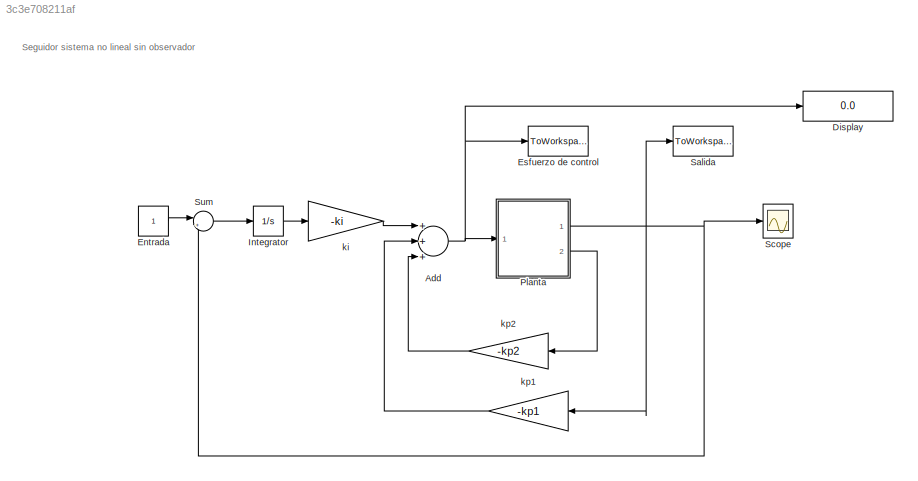
MODEL slx_3c3e708211af
KIND model
CONFIG AbsTol = auto
CONFIG FixedStep = auto
CONFIG MaxStep = auto
CONFIG MinStep = auto
CONFIG RelTol = 1e-3
CONFIG SampleTimeConstraint = Unconstrained
CONFIG Solver = VariableStepAuto
CONFIG SolverMode = Auto
CONFIG SolverName = VariableStepAuto
CONFIG StartTime = 0.0
CONFIG StopTime = 30
BLOCK [Sum] Add
  InputSameDT = off
  Inputs = +++
  OutDataTypeStr = Inherit: Inherit via internal rule
  Ports = [3, 1]
  SaturateOnIntegerOverflow = off
BLOCK [Display] Display
  Decimation = 1
  Ports = [1]
BLOCK [Constant] Entrada
BLOCK [ToWorkspace] Esfuerzo de control
  FixptAsFi = on
  MaxDataPoints = inf
  Ports = [1]
  SampleTime = -1
  Save2DSignal = 3-D array (concatenate along third dimension)
  SaveFormat = Timeseries
  VariableName = U
BLOCK [Integrator] Integrator
  Ports = [1, 1]
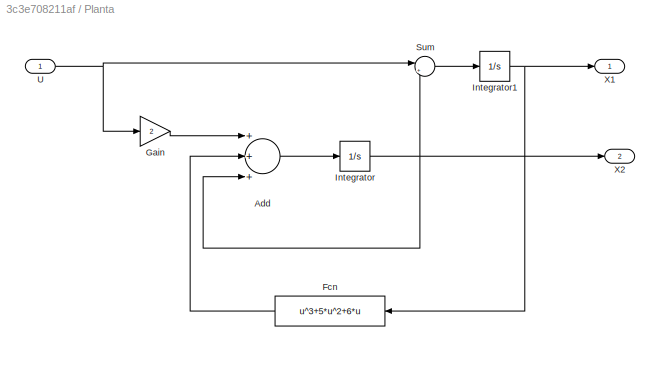
BLOCK [SubSystem] Planta
  Ports = [1, 2]
  RequestExecContextInheritance = off
  Variant = off
BLOCK [Sum] Planta/Add
  InputSameDT = off
  Inputs = +++
  OutDataTypeStr = Inherit: Inherit via internal rule
  Ports = [3, 1]
  SaturateOnIntegerOverflow = off
BLOCK [Fcn] Planta/Fcn
  Expr = u^3+5*u^2+6*u
BLOCK [Gain] Planta/Gain
  Gain = 2
  OutDataTypeStr = Inherit: Inherit via internal rule
  ParamDataTypeStr = Inherit: Inherit via internal rule
  SaturateOnIntegerOverflow = off
BLOCK [Integrator] Planta/Integrator
  Ports = [1, 1]
BLOCK [Integrator] Planta/Integrator1
  Ports = [1, 1]
BLOCK [Sum] Planta/Sum
  IconShape = round
  InputSameDT = off
  Inputs = |++
  OutDataTypeStr = Inherit: Inherit via internal rule
  Ports = [2, 1]
  SaturateOnIntegerOverflow = off
BLOCK [Inport] Planta/U
  IconDisplay = Port number
BLOCK [Outport] Planta/X1
  IconDisplay = Port number
BLOCK [Outport] Planta/X2
  IconDisplay = Port number
  Port = 2
BLOCK [ToWorkspace] Salida
  FixptAsFi = on
  MaxDataPoints = inf
  Ports = [1]
  SampleTime = -1
  Save2DSignal = 3-D array (concatenate along third dimension)
  SaveFormat = Timeseries
  VariableName = Y
BLOCK [Scope] Scope
  Ports = [1]
  ScopeSpecificationString = Simulink.scopes.TimeScopeBlockCfg('CurrentConfiguration', extmgr.ConfigurationSet(extmgr.Configuration('Core','General UI',true),extmgr.Configuration('Core','Source UI',true),extmgr.Configuration('Sources','WiredSimulink',true),extmgr.Configuration('Visuals','Time Domain',true,'SerializedDisplays',{struct('MinYLimReal','-0.13111','MaxYLimReal','1.18003','YLabelReal','','MinYLimMag','0.00000','MaxY...<+1380ch>
BLOCK [Sum] Sum
  IconShape = round
  InputSameDT = off
  Inputs = |+-
  OutDataTypeStr = Inherit: Inherit via internal rule
  Ports = [2, 1]
  SaturateOnIntegerOverflow = off
BLOCK [Gain] ki
  Gain = -ki
  OutDataTypeStr = Inherit: Inherit via internal rule
  ParamDataTypeStr = Inherit: Inherit via internal rule
  SaturateOnIntegerOverflow = off
BLOCK [Gain] kp1
  Gain = -kp1
  OutDataTypeStr = Inherit: Inherit via internal rule
  ParamDataTypeStr = Inherit: Inherit via internal rule
  SaturateOnIntegerOverflow = off
BLOCK [Gain] kp2
  Gain = -kp2
  OutDataTypeStr = Inherit: Inherit via internal rule
  ParamDataTypeStr = Inherit: Inherit via internal rule
  SaturateOnIntegerOverflow = off
ANNOTATION (root): Seguidor sistema no lineal sin observador
NET Add:1 -> Display:1, Esfuerzo de control:1, Planta:1
LINE Entrada:1 -> Sum:1
LINE Integrator:1 -> ki:1
LINE Planta/Add:1 -> Planta/Integrator:1
LINE Planta/Fcn:1 -> Planta/Add:2
LINE Planta/Gain:1 -> Planta/Add:1
NET Planta/Integrator1:1 -> Planta/Fcn:1, Planta/X1:1
NET Planta/Integrator:1 -> Planta/Add:3, Planta/Sum:2, Planta/X2:1
LINE Planta/Sum:1 -> Planta/Integrator1:1
NET Planta/U:1 -> Planta/Gain:1, Planta/Sum:1
NET Planta:1 -> Salida:1, Scope:1, Sum:2, kp1:1
LINE Planta:2 -> kp2:1
LINE Sum:1 -> Integrator:1
LINE ki:1 -> Add:1
LINE kp1:1 -> Add:2
LINE kp2:1 -> Add:3
note: NET lines group one-source signal fan-out (src -> all destinations, sorted); 1:1 wires keep LINE
